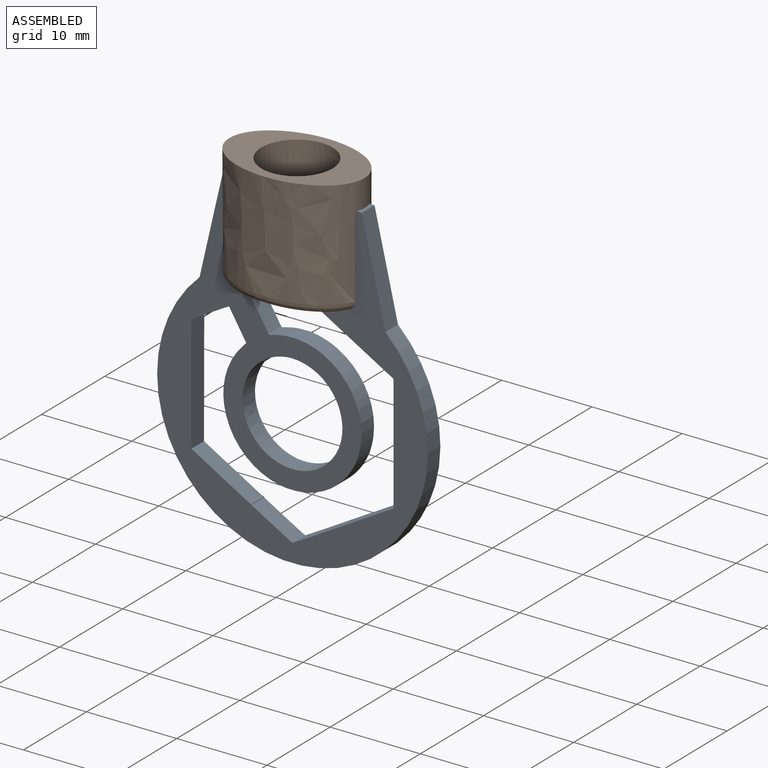
[diagram: assembled view]
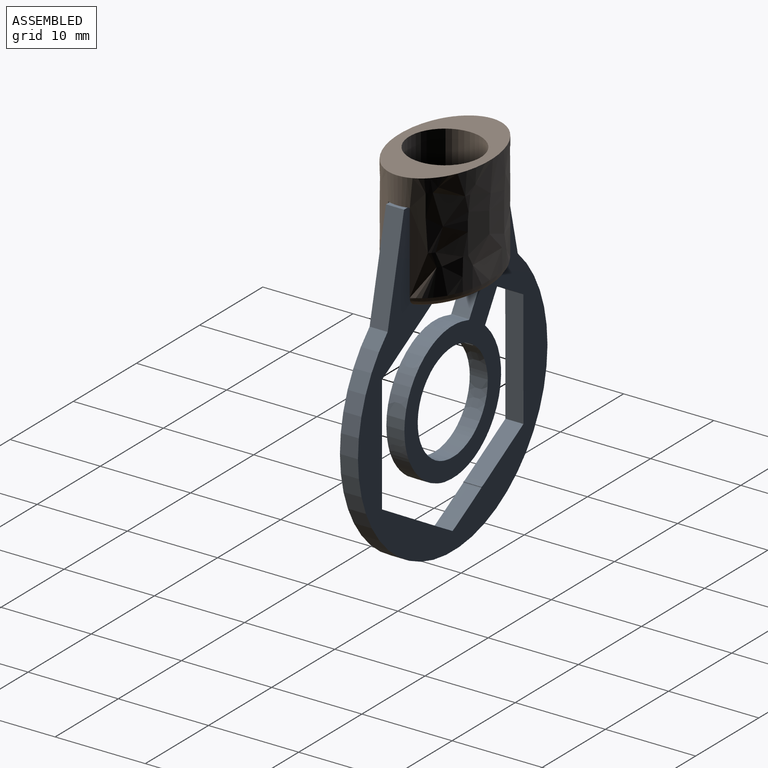
[diagram: assembled view, second angle]
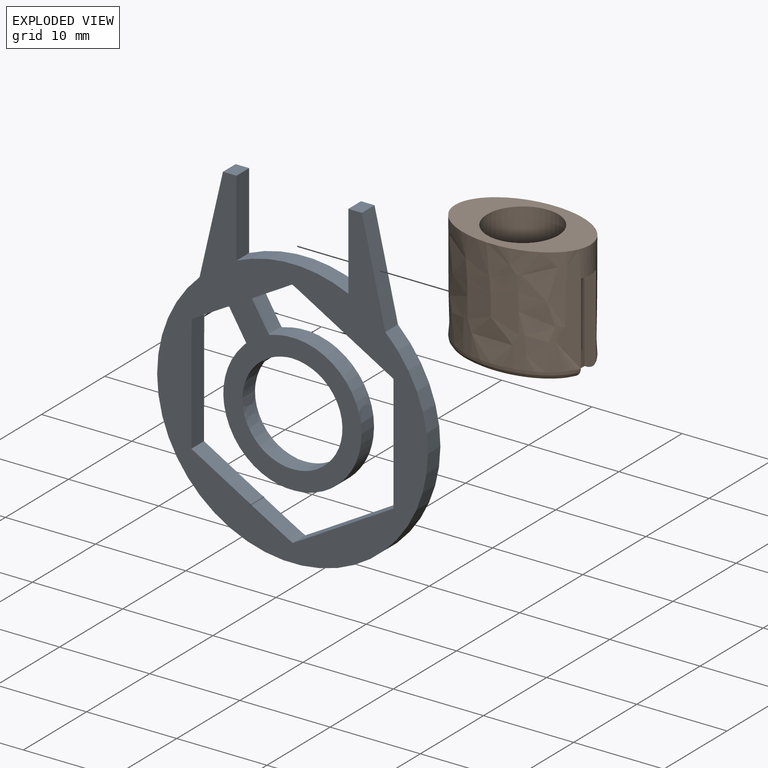
[diagram: exploded view]
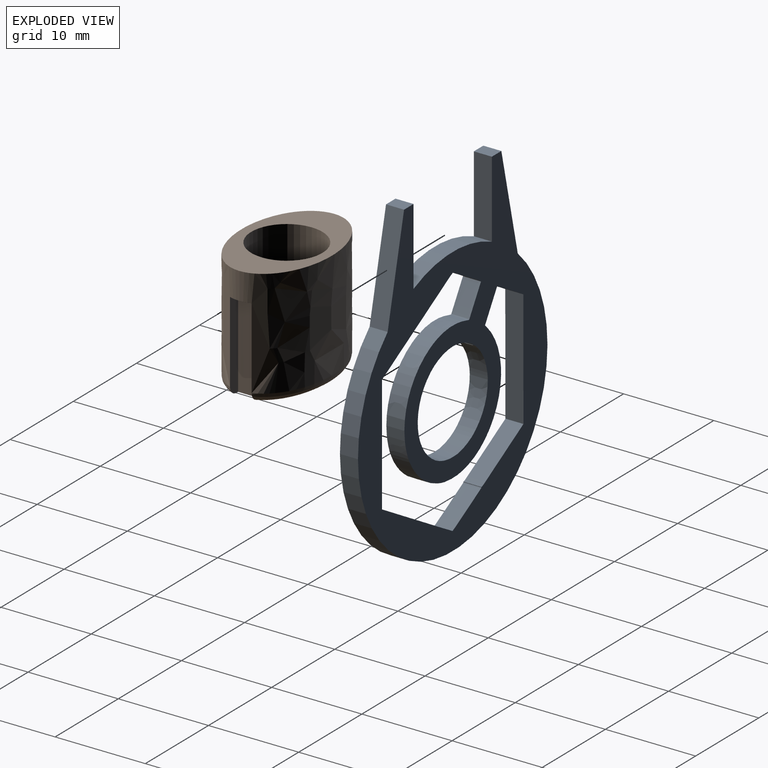
[diagram: exploded view, second angle]
ASSEMBLY  parts=2 mates=2
PART A: 65 faces, bbox 30x2x37.2 mm
  f0: plane 37.16x30mm, normal (0,-1,0), area 419.3mm2, adj f2,f3,f4,f5,f6,f7,f8,f9
  f1: plane 37.16x30mm, normal (0,1,0), area 419.3mm2, adj f2,f3,f4,f5,f6,f7,f8,f9
  f2: plane 8.51x2mm, normal (1,0,0), area 17mm2, adj f0,f1,f3,f9
  f3: plane 2x1.5mm, normal (0,0,1), area 3mm2, adj f0,f1,f2,f4
  f4: plane 11.26x2.6mm, normal (-0.97,0,0.22), area 23.1mm2, adj f0,f1,f3,f5
  f5: cylinder r=15mm len=30mm, axis (0,1,0), area 143.1mm2, adj f0,f1,f4,f6
  f6: plane 11.26x2.6mm, normal (0.97,0,0.22), area 23.1mm2, adj f0,f1,f5,f7
  f7: plane 2x1.5mm, normal (0,0,1), area 3mm2, adj f0,f1,f6,f8
  f8: plane 8.51x2mm, normal (-1,0,0), area 17mm2, adj f0,f1,f7,f9
  f9: cylinder r=15mm len=12.4mm, axis (0,1,0), area 25.6mm2, adj f0,f1,f2,f8
  f10: extruded ~2x0.63mm, area 1.4mm2, adj f0,f1,f11,f53
  f11: extruded ~2x0.03mm, area 0.1mm2, adj f0,f1,f10,f12
  f12: extruded ~2x0.15mm, area 0.4mm2, adj f0,f1,f11,f13
  f13: extruded ~2.27x2mm, area 5.2mm2, adj f0,f1,f12,f14
  f14: extruded ~2.16x2mm, area 4.9mm2, adj f0,f1,f13,f15
  f15: extruded ~2.11x2mm, area 4.9mm2, adj f0,f1,f14,f16
  f16: extruded ~2.01x2mm, area 4.7mm2, adj f0,f1,f15,f17
  f17: extruded ~3.22x2mm, area 7.4mm2, adj f0,f1,f16,f18
  f18: extruded ~2.8x2mm, area 6.5mm2, adj f0,f1,f17,f19
  f19: plane 2x1.03mm, normal (-0.5,0,0.87), area 2.4mm2, adj f0,f1,f18,f20
  f20: plane 12.99x2mm, normal (-1,0,0), area 26mm2, adj f0,f1,f19,f21
  f21: plane 2x1.13mm, normal (-0.5,0,-0.87), area 2.6mm2, adj f0,f1,f20,f22
  f22: extruded ~5.4x3.12mm, area 12.5mm2, adj f0,f1,f21,f23
  f23: extruded ~2.31x2mm, area 5.3mm2, adj f0,f1,f22,f24
  f24: extruded ~2x1.73mm, area 4mm2, adj f0,f1,f23,f25
  f25: extruded ~2x0.71mm, area 1.6mm2, adj f0,f1,f24,f26
  f26: extruded ~2x0.89mm, area 2.1mm2, adj f0,f1,f25,f27
  f27: extruded ~2x1.64mm, area 3.8mm2, adj f0,f1,f26,f28
  f28: extruded ~2x1.57mm, area 3.6mm2, adj f0,f1,f27,f29
  f29: extruded ~2x0.31mm, area 0.7mm2, adj f0,f1,f28,f30
  f30: extruded ~3.07x2mm, area 7.2mm2, adj f0,f1,f29,f31
  f31: extruded ~2x0.35mm, area 0.7mm2, adj f0,f1,f30,f32
  f32: extruded ~4.84x2mm, area 9.9mm2, adj f0,f1,f31,f33
  f33: extruded ~8.26x5.1mm, area 20.9mm2, adj f0,f1,f32,f34
  f34: extruded ~2.02x2mm, area 4.2mm2, adj f0,f1,f33,f35
  f35: extruded ~2x0.4mm, area 0.9mm2, adj f0,f1,f34,f36
  f36: extruded ~2x1.78mm, area 4.4mm2, adj f0,f1,f35,f37
  f37: extruded ~3.17x2.01mm, area 7.6mm2, adj f0,f1,f36,f38
  f38: extruded ~2.16x2mm, area 4.4mm2, adj f0,f1,f37,f39
  f39: extruded ~2.62x2mm, area 5.3mm2, adj f0,f1,f38,f40
  f40: extruded ~6.18x5.17mm, area 17mm2, adj f0,f1,f39,f41
  f41: extruded ~6.53x2.28mm, area 14.3mm2, adj f0,f1,f40,f42
  f42: plane 2x0.26mm, normal (-0.71,0,0.7), area 0.7mm2, adj f0,f1,f41,f43
  f43: plane 2x1.53mm, normal (-0.86,0,-0.51), area 3.6mm2, adj f0,f1,f42,f44
  f44: extruded ~2x1.59mm, area 3.7mm2, adj f0,f1,f43,f45
  f45: extruded ~2x1.78mm, area 4.1mm2, adj f0,f1,f44,f46
  f46: extruded ~2x1.42mm, area 3.3mm2, adj f0,f1,f45,f47
  f47: extruded ~2x0.61mm, area 1.4mm2, adj f0,f1,f46,f48
  f48: plane 2x0.37mm, normal (0.51,0,-0.86), area 0.9mm2, adj f0,f1,f47,f49
  f49: plane 13x2mm, normal (1,0,0), area 26mm2, adj f0,f1,f48,f50
  f50: plane 2x0.14mm, normal (0.5,0,0.87), area 0.3mm2, adj f0,f1,f49,f51
  f51: extruded ~3.3x2mm, area 7.6mm2, adj f0,f1,f50,f52
  f52: extruded ~2x1.28mm, area 2.9mm2, adj f0,f1,f51,f53
  f53: extruded ~2x1.29mm, area 3mm2, adj f0,f1,f10,f52
  f54: extruded ~2.91x2mm, area 6.5mm2, adj f0,f1,f55,f64
  f55: extruded ~2x0.72mm, area 1.4mm2, adj f0,f1,f54,f56
  f56: extruded ~3.96x2mm, area 8.8mm2, adj f0,f1,f55,f57
  f57: extruded ~8.25x2.1mm, area 18.6mm2, adj f0,f1,f56,f58
  f58: extruded ~3.47x2mm, area 7.5mm2, adj f0,f1,f57,f59
  f59: extruded ~2.38x2mm, area 4.9mm2, adj f0,f1,f58,f60
  f60: extruded ~2x0.81mm, area 2mm2, adj f0,f1,f59,f61
  f61: extruded ~2x0.03mm, area 0.1mm2, adj f0,f1,f60,f62
  f62: extruded ~2x0.8mm, area 2.1mm2, adj f0,f1,f61,f63
  f63: extruded ~2.96x2mm, area 6.7mm2, adj f0,f1,f62,f64
  f64: extruded ~5.02x2mm, area 11.1mm2, adj f0,f1,f54,f63
PART B: 15 faces, bbox 15.3x10.3x13.3 mm
  f0: plane 12.38x8mm, normal (0,0,-1), area 79.4mm2, adj f3,f4,f5,f7,f8,f9,f13,f14
  f1: extruded ~15x12mm, area 431.8mm2, adj f2,f3,f4,f6,f7,f9,f10,f13
  f2: plane 15x10mm, normal (0,0,1), area 68.8mm2, adj f1,f11
  f3: plane 10.25x1.53mm, normal (0,1,0), area 12.6mm2, adj f0,f1,f5,f6,f13
  f4: plane 10.25x1.53mm, normal (0,-1,0), area 12.6mm2, adj f0,f1,f5,f6,f14
  f5: plane 10x2.4mm, normal (1,0,0), area 24mm2, adj f0,f3,f4,f6
  f6: plane 2.4x1.5mm, normal (0,0,-1), area 3.4mm2, adj f1,f3,f4,f5
  f7: plane 10.25x1.53mm, normal (0,1,0), area 12.6mm2, adj f0,f1,f8,f10,f13
  f8: plane 10x2.4mm, normal (-1,0,0), area 24mm2, adj f0,f7,f9,f10
  f9: plane 10.25x1.53mm, normal (0,-1,0), area 12.6mm2, adj f0,f1,f8,f10,f14
  f10: plane 2.4x1.5mm, normal (0,0,-1), area 3.4mm2, adj f1,f7,f8,f9
  f11: cylinder r=3.95mm len=12mm, axis (0,0,-1), area 297.8mm2, adj f2,f12
  f12: plane 7.9x7.9mm, normal (0,0,1), area 49mm2, adj f11
  f13: bspline ~14.77x4.37mm, area 25.2mm2, adj f0,f1,f3,f7
  f14: bspline ~14.77x4.37mm, area 25.2mm2, adj f0,f1,f4,f9
PLACE A t=(17.9,16.6,-8.8)mm
PLACE B t=(17.7,16.6,-22.71)mm
MATE planar B.f8 <-> A.f2  axis (-1,0,0) through (11.7,16.6,-17.71)mm
MATE planar B.f6 <-> A.f7  axis (0,0,-1) through (24.42,16.6,-12.71)mm
